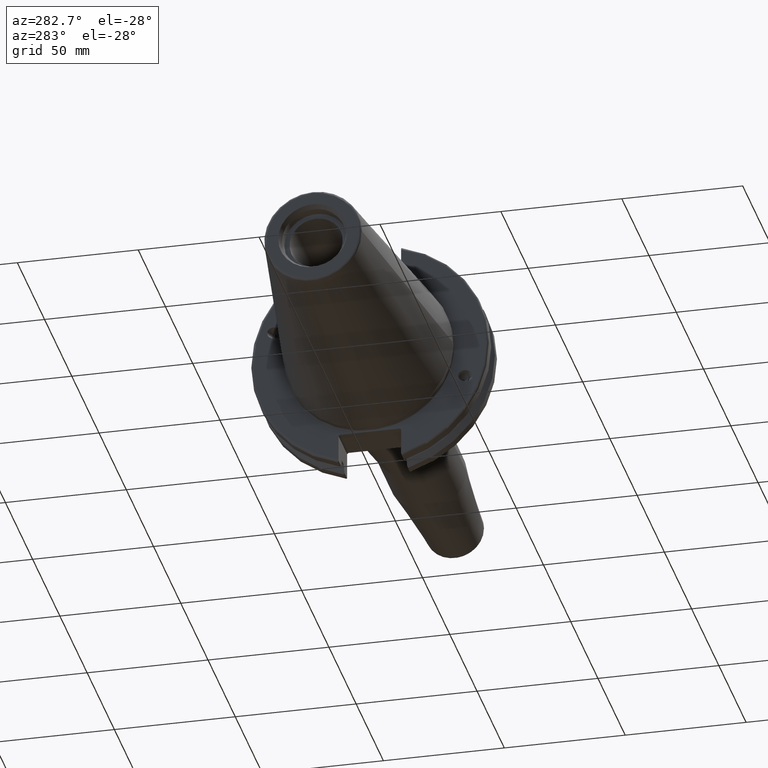
[diagram: clean part render]
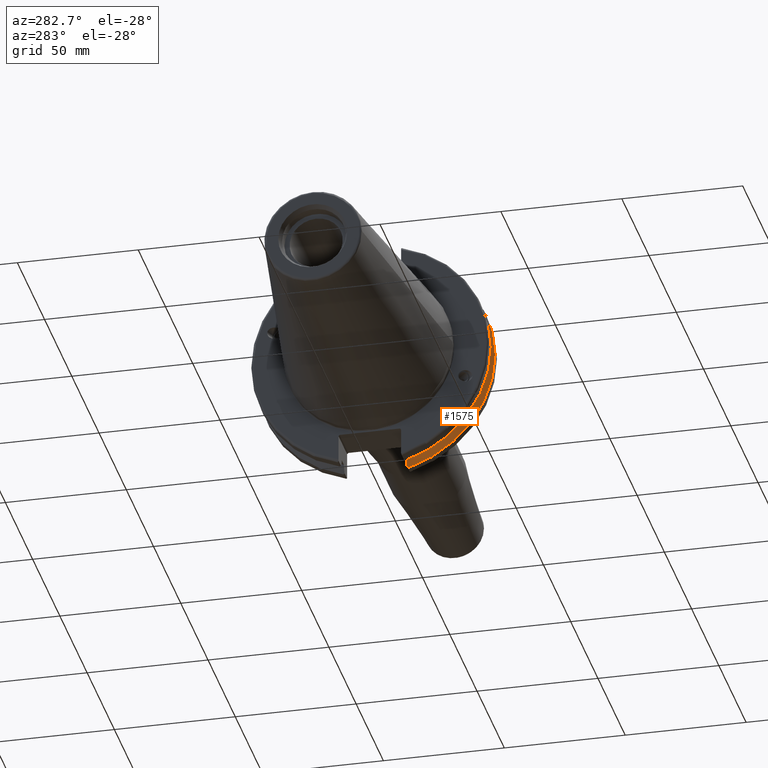
[diagram: same view with one face highlighted and labeled with its STEP entity id]
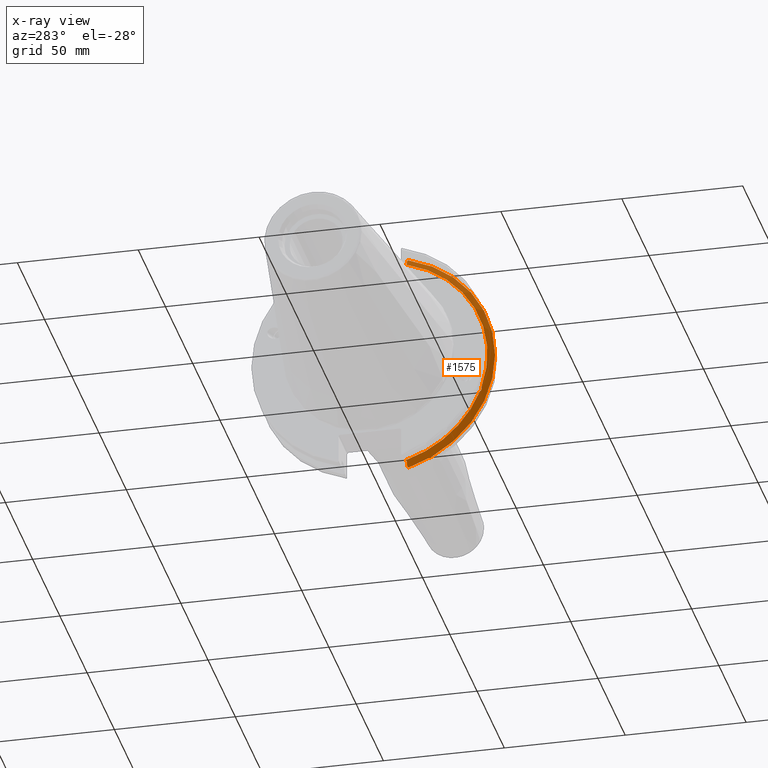
[diagram: x-ray of the same camera — body ghosted, the highlighted face saturated]
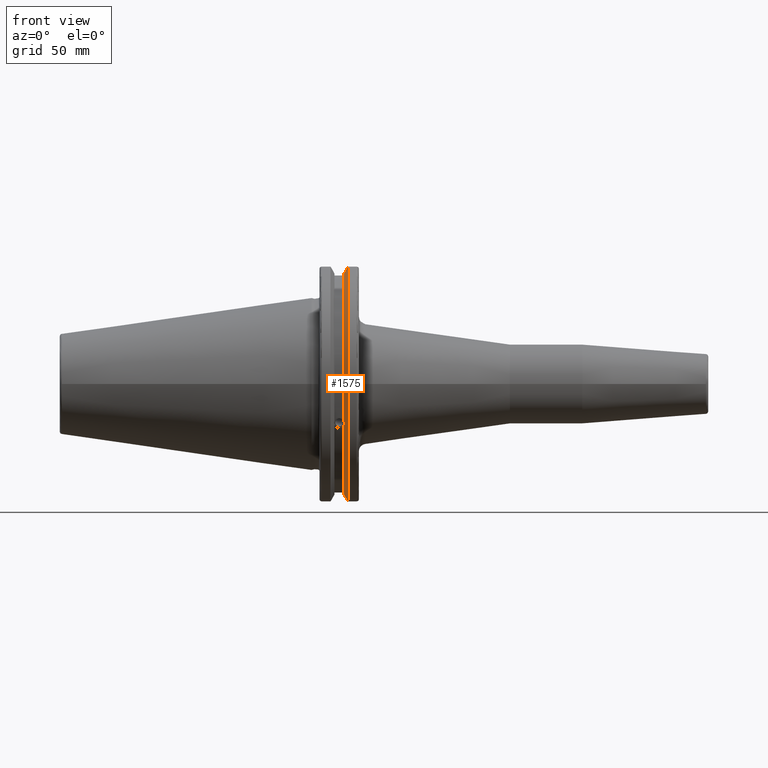
[diagram: same view with one face highlighted and labeled with its STEP entity id]
A machine part, auxiliary view. The second image highlights one B-rep face of the part: STEP entity #1575.
The next image is the same camera in x-ray: the body ghosted, the highlighted face saturated — about 0% of this face is hidden behind the body in this view.
A second angle (front view) of the same face is appended — the face is thin or edge-on in the first view.
In plain terms, the highlighted conical surface has half-angle 60 deg.
Its self-contained STEP definition (entity closure, byte-faithful):
#15=(
BOUNDED_CURVE()
B_SPLINE_CURVE(2,(#2639,#2640,#2641),.UNSPECIFIED.,.F.,.F.)
B_SPLINE_CURVE_WITH_KNOTS((3,3),(0.,0.275823910673374),.UNSPECIFIED.)
CURVE()
GEOMETRIC_REPRESENTATION_ITEM()
RATIONAL_B_SPLINE_CURVE((1.,1.00038235574978,1.00012873636953))
REPRESENTATION_ITEM('')
);
#16=(
BOUNDED_CURVE()
B_SPLINE_CURVE(2,(#2643,#2644,#2645),.UNSPECIFIED.,.F.,.F.)
B_SPLINE_CURVE_WITH_KNOTS((3,3),(0.,0.0648240472896156),.UNSPECIFIED.)
CURVE()
GEOMETRIC_REPRESENTATION_ITEM()
RATIONAL_B_SPLINE_CURVE((1.,1.00011477674884,1.00019140646027))
REPRESENTATION_ITEM('')
);
#17=(
BOUNDED_CURVE()
B_SPLINE_CURVE(2,(#2649,#2650,#2651),.UNSPECIFIED.,.F.,.F.)
B_SPLINE_CURVE_WITH_KNOTS((3,3),(0.325260944932494,0.3900849922222),
 .UNSPECIFIED.)
CURVE()
GEOMETRIC_REPRESENTATION_ITEM()
RATIONAL_B_SPLINE_CURVE((1.00019140645961,1.00011477674844,1.))
REPRESENTATION_ITEM('')
);
#18=(
BOUNDED_CURVE()
B_SPLINE_CURVE(2,(#2653,#2654,#2655),.UNSPECIFIED.,.F.,.F.)
B_SPLINE_CURVE_WITH_KNOTS((3,3),(0.0558332664531015,0.331657177124503),
 .UNSPECIFIED.)
CURVE()
GEOMETRIC_REPRESENTATION_ITEM()
RATIONAL_B_SPLINE_CURVE((1.00012873636668,1.00038235574129,1.))
REPRESENTATION_ITEM('')
);
#37=B_SPLINE_CURVE_WITH_KNOTS('',3,(#2549,#2550,#2551,#2552,#2553,#2554,
#2555,#2556),.UNSPECIFIED.,.F.,.F.,(4,2,2,4),(0.42671286835872,0.441644498666905,
0.480313313223129,0.518982127779353),.UNSPECIFIED.);
#41=B_SPLINE_CURVE_WITH_KNOTS('',3,(#2611,#2612,#2613,#2614,#2615,#2616,
#2617,#2618),.UNSPECIFIED.,.F.,.F.,(4,2,2,4),(0.518982127779353,0.557650942335576,
0.5963197568918,0.611251387199985),.UNSPECIFIED.);
#198=FACE_OUTER_BOUND('',#301,.T.);
#301=EDGE_LOOP('',(#1184,#1185,#1186,#1187,#1188,#1189,#1190,#1191,#1192));
#608=CIRCLE('',#1726,46.4219772964944);
#609=CIRCLE('',#1727,49.2125);
#610=CIRCLE('',#1728,46.4219772964944);
#703=VERTEX_POINT('',#2546);
#704=VERTEX_POINT('',#2548);
#711=VERTEX_POINT('',#2609);
#717=VERTEX_POINT('',#2636);
#718=VERTEX_POINT('',#2638);
#719=VERTEX_POINT('',#2642);
#720=VERTEX_POINT('',#2646);
#721=VERTEX_POINT('',#2648);
#722=VERTEX_POINT('',#2652);
#878=EDGE_CURVE('',#704,#703,#37,.T.);
#886=EDGE_CURVE('',#703,#711,#41,.T.);
#894=EDGE_CURVE('',#711,#717,#608,.T.);
#895=EDGE_CURVE('',#717,#718,#15,.T.);
#896=EDGE_CURVE('',#719,#718,#16,.T.);
#897=EDGE_CURVE('',#720,#719,#609,.T.);
#898=EDGE_CURVE('',#721,#720,#17,.T.);
#899=EDGE_CURVE('',#721,#722,#18,.T.);
#900=EDGE_CURVE('',#722,#704,#610,.T.);
#1184=ORIENTED_EDGE('',*,*,#878,.T.);
#1185=ORIENTED_EDGE('',*,*,#886,.T.);
#1186=ORIENTED_EDGE('',*,*,#894,.T.);
#1187=ORIENTED_EDGE('',*,*,#895,.T.);
#1188=ORIENTED_EDGE('',*,*,#896,.F.);
#1189=ORIENTED_EDGE('',*,*,#897,.F.);
#1190=ORIENTED_EDGE('',*,*,#898,.F.);
#1191=ORIENTED_EDGE('',*,*,#899,.T.);
#1192=ORIENTED_EDGE('',*,*,#900,.T.);
#1537=CONICAL_SURFACE('',#1725,47.8172386482472,1.0471975511966);
#1575=ADVANCED_FACE('',(#198),#1537,.T.);
#1725=AXIS2_PLACEMENT_3D('',#2635,#1998,#1999);
#1726=AXIS2_PLACEMENT_3D('',#2637,#2000,#2001);
#1727=AXIS2_PLACEMENT_3D('',#2647,#2002,#2003);
#1728=AXIS2_PLACEMENT_3D('',#2656,#2004,#2005);
#1998=DIRECTION('center_axis',(1.,0.,0.));
#1999=DIRECTION('ref_axis',(0.,-1.,-1.22464679914735E-16));
#2000=DIRECTION('center_axis',(1.,0.,0.));
#2001=DIRECTION('ref_axis',(0.,0.,-1.));
#2002=DIRECTION('center_axis',(1.,0.,0.));
#2003=DIRECTION('ref_axis',(0.,0.,-1.));
#2004=DIRECTION('center_axis',(1.,0.,0.));
#2005=DIRECTION('ref_axis',(0.,0.,-1.));
#2546=CARTESIAN_POINT('',(13.2341,-43.923494649906,-15.9868446375166));
#2548=CARTESIAN_POINT('',(13.0491,-43.9096390749305,-15.0646464421033));
#2549=CARTESIAN_POINT('Ctrl Pts',(13.0491,-43.9096390749305,-15.0646464421033));
#2550=CARTESIAN_POINT('Ctrl Pts',(13.0660815609661,-43.9250360001461,-15.1104047527575));
#2551=CARTESIAN_POINT('Ctrl Pts',(13.0821132459668,-43.9385582852181,-15.1564111356409));
#2552=CARTESIAN_POINT('Ctrl Pts',(13.1358132615496,-43.9797830409459,-15.3217566390708));
#2553=CARTESIAN_POINT('Ctrl Pts',(13.1719838933644,-43.9989016655819,-15.4570249042868));
#2554=CARTESIAN_POINT('Ctrl Pts',(13.2212913174802,-43.9931221605126,-15.7289849146254));
#2555=CARTESIAN_POINT('Ctrl Pts',(13.2341,-43.9675796948952,-15.8657219718732));
#2556=CARTESIAN_POINT('Ctrl Pts',(13.2341,-43.923494649906,-15.9868446375166));
#2609=CARTESIAN_POINT('',(13.0491,-43.3201030900029,-16.6843832486479));
#2611=CARTESIAN_POINT('Ctrl Pts',(13.2341,-43.923494649906,-15.9868446375166));
#2612=CARTESIAN_POINT('Ctrl Pts',(13.2341,-43.8794096049169,-16.10796730316));
#2613=CARTESIAN_POINT('Ctrl Pts',(13.2212913174802,-43.8110833825827,-16.2291323464527));
#2614=CARTESIAN_POINT('Ctrl Pts',(13.1719838933644,-43.6406982153492,-16.441180795372));
#2615=CARTESIAN_POINT('Ctrl Pts',(13.1358132615496,-43.5391037343221,-16.5325130832406));
#2616=CARTESIAN_POINT('Ctrl Pts',(13.0821132459668,-43.4012416983557,-16.6326763251437));
#2617=CARTESIAN_POINT('Ctrl Pts',(13.0660815609661,-43.3613106941341,-16.6592273018006));
#2618=CARTESIAN_POINT('Ctrl Pts',(13.0491,-43.3201030900029,-16.6843832486479));
#2635=CARTESIAN_POINT('Origin',(13.8546545170244,0.,0.));
#2636=CARTESIAN_POINT('',(13.0491,-12.95,-44.5791147973604));
#2637=CARTESIAN_POINT('Origin',(13.0491,0.,0.));
#2638=CARTESIAN_POINT('',(14.3818103943757,-12.95,-46.9780755322917));
#2639=CARTESIAN_POINT('Ctrl Pts',(13.0491,-12.95,-44.5791147973604));
#2640=CARTESIAN_POINT('Ctrl Pts',(13.697995509466,-12.95,-45.749496680259));
#2641=CARTESIAN_POINT('Ctrl Pts',(14.3818103943757,-12.95,-46.9780755322917));
#2642=CARTESIAN_POINT('',(14.6602090340487,-13.4317035994433,-47.3440544806494));
#2643=CARTESIAN_POINT('Ctrl Pts',(14.6602090340487,-13.4317035994433,-47.3440544806494));
#2644=CARTESIAN_POINT('Ctrl Pts',(14.5199310333617,-13.1896660169964,-47.1601640966263));
#2645=CARTESIAN_POINT('Ctrl Pts',(14.3818103943757,-12.95,-46.9780755322917));
#2646=CARTESIAN_POINT('',(14.6602090340487,-13.4317035994433,47.3440544806494));
#2647=CARTESIAN_POINT('Origin',(14.6602090340487,0.,0.));
#2648=CARTESIAN_POINT('',(14.3818103943757,-12.95,46.9780755322918));
#2649=CARTESIAN_POINT('Ctrl Pts',(14.3818103943757,-12.95,46.9780755322918));
#2650=CARTESIAN_POINT('Ctrl Pts',(14.5199310333617,-13.1896660169966,47.1601640966264));
#2651=CARTESIAN_POINT('Ctrl Pts',(14.6602090340487,-13.4317035994433,47.3440544806494));
#2652=CARTESIAN_POINT('',(13.0491,-12.95,44.5791147973604));
#2653=CARTESIAN_POINT('Ctrl Pts',(14.3818103943757,-12.95,46.9780755322918));
#2654=CARTESIAN_POINT('Ctrl Pts',(13.6979955094846,-12.95,45.7494966802924));
#2655=CARTESIAN_POINT('Ctrl Pts',(13.0491,-12.95,44.5791147973604));
#2656=CARTESIAN_POINT('Origin',(13.0491,0.,0.));